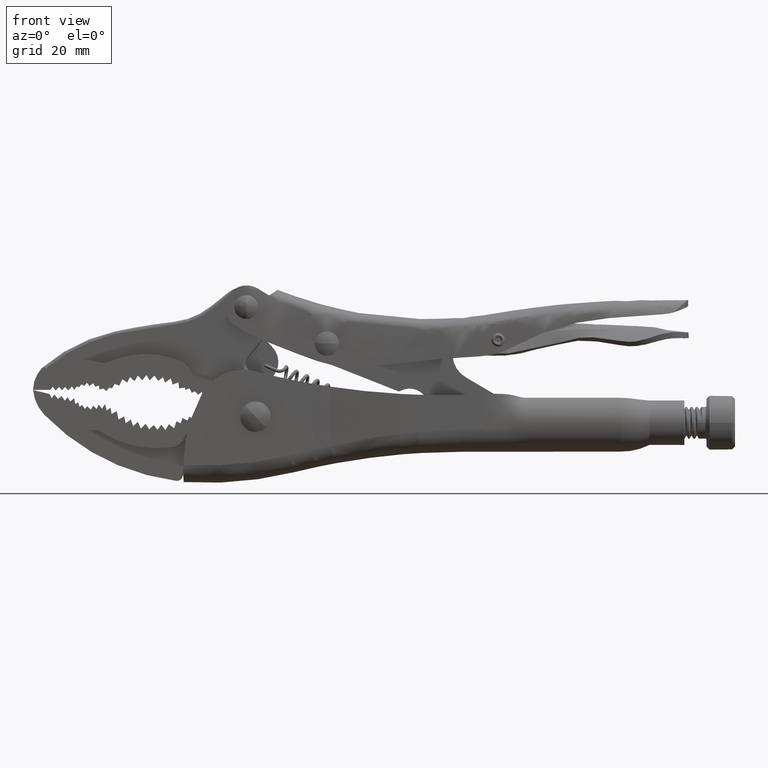
[diagram: clean part render]
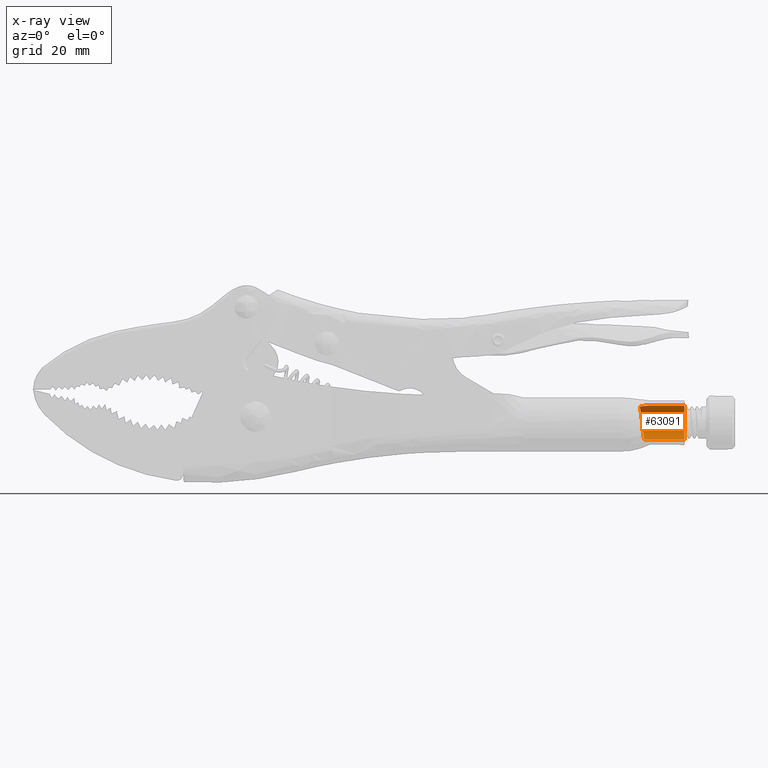
[diagram: x-ray — body ghosted, one internal face saturated and labeled with its STEP entity id]
A machine part, front view, then the same camera in x-ray: the body is ghosted and one INTERNAL B-rep face — a face not visible from any outside direction — is saturated and labeled: STEP entity #63091.
In plain terms, the highlighted cylindrical surface (edge-blend (fillet) strip) has radius 5.907 mm, axis along (1, 0, 0).
Its self-contained STEP definition (entity closure, byte-faithful):
#6461 = CARTESIAN_POINT ( 'NONE',  ( 131.1537435833099900, -6.729294507892656300, -5.430886578589014100 ) ) ;
#6796 = CARTESIAN_POINT ( 'NONE',  ( 130.5540124863031500, -4.129015668374751900, 0.2362667424729954800 ) ) ;
#7118 = CARTESIAN_POINT ( 'NONE',  ( 129.7730982584563700, -8.031759823208547600, 5.069427929640602000 ) ) ;
#14225 = CARTESIAN_POINT ( 'NONE',  ( 131.0957886068870600, -5.914244338665349200, -4.780160479841717900 ) ) ;
#14546 = CARTESIAN_POINT ( 'NONE',  ( 130.4234271690730800, -4.345126432919236100, 1.241386711996165500 ) ) ;
#19634 = CARTESIAN_POINT ( 'NONE',  ( 130.3838536745023800, -8.277666760606830800, 5.156331633226163700 ) ) ;
#20109 = VECTOR ( 'NONE', #76159, 1000.000000000000000 ) ;
#21642 = CARTESIAN_POINT ( 'NONE',  ( 131.2385837703015500, -9.650321763887433200, -6.406987121789972800 ) ) ;
#21982 = CARTESIAN_POINT ( 'NONE',  ( 131.0215269757770800, -5.233169917028496900, -4.005451216610321600 ) ) ;
#22307 = CARTESIAN_POINT ( 'NONE',  ( 130.2913809596643700, -4.734626905727878000, 2.199280196142388500 ) ) ;
#22530 = LINE ( 'NONE', #30565, #20109 ) ;
#25037 = DIRECTION ( 'NONE',  ( 0.0000000000000000000, 0.0000000000000000000, -1.000000000000000000 ) ) ;
#25638 = ORIENTED_EDGE ( 'NONE', *, *, #45992, .F. ) ;
#28007 = CYLINDRICAL_SURFACE ( 'NONE', #41156, 5.906987121790264100 ) ;
#29727 = CARTESIAN_POINT ( 'NONE',  ( 130.9340094079271900, -4.692638148243045900, -3.116125102399316800 ) ) ;
#30041 = CARTESIAN_POINT ( 'NONE',  ( 130.1605125359424200, -5.280870090776227600, 3.069333611825433700 ) ) ;
#30141 = VERTEX_POINT ( 'NONE', #38322 ) ;
#30319 = VERTEX_POINT ( 'NONE', #69878 ) ;
#30565 = CARTESIAN_POINT ( 'NONE',  ( 122.2000000000000300, -10.00000000000000000, -6.406987121790265000 ) ) ;
#30633 = EDGE_CURVE ( 'NONE', #36478, #43665, #22530, .T. ) ;
#32545 = ORIENTED_EDGE ( 'NONE', *, *, #78430, .F. ) ;
#33077 = DIRECTION ( 'NONE',  ( 1.000000000000000000, -0.0000000000000000000, -0.0000000000000000000 ) ) ;
#35106 = CARTESIAN_POINT ( 'NONE',  ( 132.1028105897748900, -9.225632341886672800, 5.365491263063712600 ) ) ;
#36270 = CARTESIAN_POINT ( 'NONE',  ( 145.2000000000000200, -10.00000000000000000, -0.5000000000000004400 ) ) ;
#36478 = VERTEX_POINT ( 'NONE', #93539 ) ;
#36493 = CARTESIAN_POINT ( 'NONE',  ( 145.2000000000000200, -9.961392241034053200, 5.406860951295845700 ) ) ;
#37081 = CARTESIAN_POINT ( 'NONE',  ( 131.2352575062896600, -9.305920164378946400, -6.376185595843741000 ) ) ;
#37409 = CARTESIAN_POINT ( 'NONE',  ( 130.8319859412993700, -4.319698814936648600, -2.156693986326060600 ) ) ;
#37729 = CARTESIAN_POINT ( 'NONE',  ( 130.0348757232642900, -5.975274525905807500, 3.837277736695803700 ) ) ;
#38322 = CARTESIAN_POINT ( 'NONE',  ( 129.7730982584563700, -8.031759823208547600, 5.069427929640602000 ) ) ;
#41156 = AXIS2_PLACEMENT_3D ( 'NONE', #78621, #33077, #25037 ) ;
#42739 = VERTEX_POINT ( 'NONE', #71697 ) ;
#42783 = CARTESIAN_POINT ( 'NONE',  ( 133.1999999999999900, -9.961392241034056700, 5.406860951295845700 ) ) ;
#43665 = VERTEX_POINT ( 'NONE', #86645 ) ;
#43951 = DIRECTION ( 'NONE',  ( 0.0000000000000000000, 0.0000000000000000000, -1.000000000000000000 ) ) ;
#44759 = CARTESIAN_POINT ( 'NONE',  ( 131.2181622132675300, -8.291334081120405500, -6.165201243451765100 ) ) ;
#45087 = CARTESIAN_POINT ( 'NONE',  ( 130.7193339084327300, -4.117536730763127700, -1.138652507530076400 ) ) ;
#45401 = CARTESIAN_POINT ( 'NONE',  ( 129.9159430131344400, -6.786880204438232600, 4.468580886526241100 ) ) ;
#45992 = EDGE_CURVE ( 'NONE', #36478, #30141, #81674, .T. ) ;
#48266 = FACE_OUTER_BOUND ( 'NONE', #90396, .T. ) ;
#48962 = VECTOR ( 'NONE', #67087, 1000.000000000000000 ) ;
#51377 = LINE ( 'NONE', #36493, #48962 ) ;
#52423 = CARTESIAN_POINT ( 'NONE',  ( 131.1842773388434000, -7.324612668883542500, -5.777637681341149200 ) ) ;
#52749 = CARTESIAN_POINT ( 'NONE',  ( 130.5962735111475300, -4.095835113268290900, -0.1114859847739143900 ) ) ;
#53060 = CARTESIAN_POINT ( 'NONE',  ( 129.8068577330063200, -7.703672167661236100, 4.953481496126093100 ) ) ;
#55507 = ORIENTED_EDGE ( 'NONE', *, *, #58140, .F. ) ;
#57557 = AXIS2_PLACEMENT_3D ( 'NONE', #36270, #89468, #43951 ) ;
#58140 = EDGE_CURVE ( 'NONE', #30141, #30319, #98168, .T. ) ;
#60071 = CARTESIAN_POINT ( 'NONE',  ( 131.1365400289737100, -6.444098189221156400, -5.229559743721055500 ) ) ;
#60390 = CARTESIAN_POINT ( 'NONE',  ( 130.4678716858370000, -4.253969086992611000, 0.9119753840008749700 ) ) ;
#60544 = CIRCLE ( 'NONE', #57557, 5.906987121790264100 ) ;
#62719 = ORIENTED_EDGE ( 'NONE', *, *, #93730, .F. ) ;
#63091 = ADVANCED_FACE ( 'NONE', ( #48266 ), #28007, .F. ) ;
#67087 = DIRECTION ( 'NONE',  ( 1.000000000000000000, 0.0000000000000000000, 0.0000000000000000000 ) ) ;
#67674 = CARTESIAN_POINT ( 'NONE',  ( 131.0722070935349800, -5.672349574329086200, -4.535133091379669200 ) ) ;
#67993 = CARTESIAN_POINT ( 'NONE',  ( 130.3353332497327400, -4.584541593078010500, 1.883869330161259200 ) ) ;
#69878 = CARTESIAN_POINT ( 'NONE',  ( 133.1999999999999900, -9.961392241034056700, 5.406860951295845700 ) ) ;
#71697 = CARTESIAN_POINT ( 'NONE',  ( 145.2000000000000200, -9.961392241034053200, 5.406860951295845700 ) ) ;
#73018 = CARTESIAN_POINT ( 'NONE',  ( 129.7730982584563700, -8.031759823208547600, 5.069427929640602000 ) ) ;
#74982 = CARTESIAN_POINT ( 'NONE',  ( 131.2385837703015700, -9.999999999995070600, -6.406987121790265000 ) ) ;
#75314 = CARTESIAN_POINT ( 'NONE',  ( 130.9941866509401500, -5.034342668691942400, -3.717832755895710900 ) ) ;
#75631 = CARTESIAN_POINT ( 'NONE',  ( 130.2042717294411900, -5.082635243767927400, 2.790864818453947300 ) ) ;
#76159 = DIRECTION ( 'NONE',  ( 1.000000000000000000, -0.0000000000000000000, -0.0000000000000000000 ) ) ;
#78430 = EDGE_CURVE ( 'NONE', #30319, #42739, #51377, .T. ) ;
#78621 = CARTESIAN_POINT ( 'NONE',  ( 122.2000000000000300, -10.00000000000000000, -0.5000000000000004400 ) ) ;
#80648 = CARTESIAN_POINT ( 'NONE',  ( 130.9683415264992400, -8.570593528174526900, 5.241117501437511100 ) ) ;
#80989 = ORIENTED_EDGE ( 'NONE', *, *, #30633, .T. ) ;
#81674 = B_SPLINE_CURVE_WITH_KNOTS ( 'NONE', 3,
 ( #74982, #21642, #37081, #90273, #44759, #97893, #52423, #6461, #60071, #14225, #67674, #21982, #75314, #29727, #82927, #37409, #90601, #45087, #98216, #52749, #6796, #60390, #14546, #67993, #22307, #75631, #30041, #83252, #37729, #90916, #45401, #98535, #53060, #7118 ),
 .UNSPECIFIED., .F., .F.,
 ( 4, 2, 2, 2, 2, 2, 2, 2, 2, 2, 2, 2, 2, 2, 2, 2, 4 ),
 ( 0.01654466461452231600, 0.01757876589573942300, 0.01861286717695653100, 0.01964696845817363500, 0.02068106973939074300, 0.02171517102060785100, 0.02274927230182495500, 0.02378337358304206300, 0.02481747486425917000, 0.02585157614547627100, 0.02688567742669337900, 0.02791977870791048600, 0.02895387998912759400, 0.02998798127034469800, 0.03102208255156180600, 0.03205618383277891700, 0.03309028511399601800 ),
 .UNSPECIFIED. ) ;
#82927 = CARTESIAN_POINT ( 'NONE',  ( 130.9009596815203300, -4.549978428468426400, -2.803849254443865100 ) ) ;
#83252 = CARTESIAN_POINT ( 'NONE',  ( 130.0759263898772800, -5.726083001175191500, 3.591938784951885600 ) ) ;
#86645 = CARTESIAN_POINT ( 'NONE',  ( 145.2000000000000200, -10.00000000000000000, -6.406987121790265000 ) ) ;
#88304 = CARTESIAN_POINT ( 'NONE',  ( 132.6530054068042000, -9.587480822911155400, 5.404417033616973700 ) ) ;
#89468 = DIRECTION ( 'NONE',  ( -1.000000000000000000, 0.0000000000000000000, 0.0000000000000000000 ) ) ;
#90273 = CARTESIAN_POINT ( 'NONE',  ( 131.2250660926112300, -8.627184323023801200, -6.255578258703949700 ) ) ;
#90396 = EDGE_LOOP ( 'NONE', ( #25638, #80989, #62719, #32545, #55507 ) ) ;
#90601 = CARTESIAN_POINT ( 'NONE',  ( 130.7957397338242300, -4.231705939750067800, -1.818345468297588600 ) ) ;
#90916 = CARTESIAN_POINT ( 'NONE',  ( 129.9551591793704100, -6.504916172681196200, 4.274388164683964300 ) ) ;
#93539 = CARTESIAN_POINT ( 'NONE',  ( 131.2385837703015700, -9.999999999995070600, -6.406987121790265000 ) ) ;
#93730 = EDGE_CURVE ( 'NONE', #42739, #43665, #60544, .T. ) ;
#97893 = CARTESIAN_POINT ( 'NONE',  ( 131.1977398199200900, -7.636786086205400900, -5.924874592909561400 ) ) ;
#98168 = B_SPLINE_CURVE_WITH_KNOTS ( 'NONE', 3,
 ( #73018, #19634, #80648, #35106, #88304, #42783 ),
 .UNSPECIFIED., .F., .F.,
 ( 4, 2, 4 ),
 ( 2.842367045578226700E-016, 0.001973638635757653300, 0.003947277271515023000 ),
 .UNSPECIFIED. ) ;
#98216 = CARTESIAN_POINT ( 'NONE',  ( 130.6787632512126700, -4.090542389298688500, -0.7973497890820084900 ) ) ;
#98535 = CARTESIAN_POINT ( 'NONE',  ( 129.8418248695661200, -7.385611967709686500, 4.808098535558846400 ) ) ;